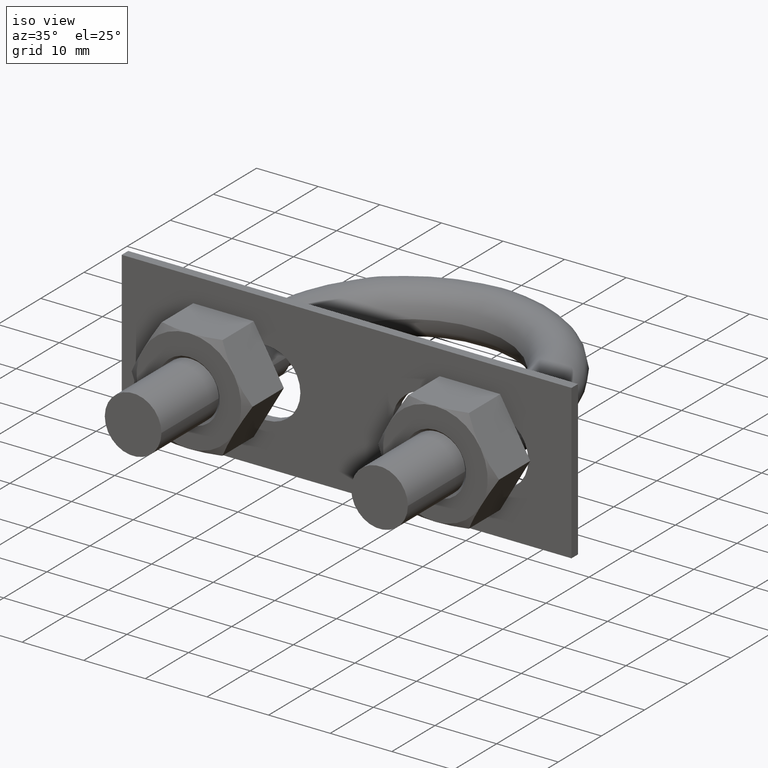
[diagram: clean part render]
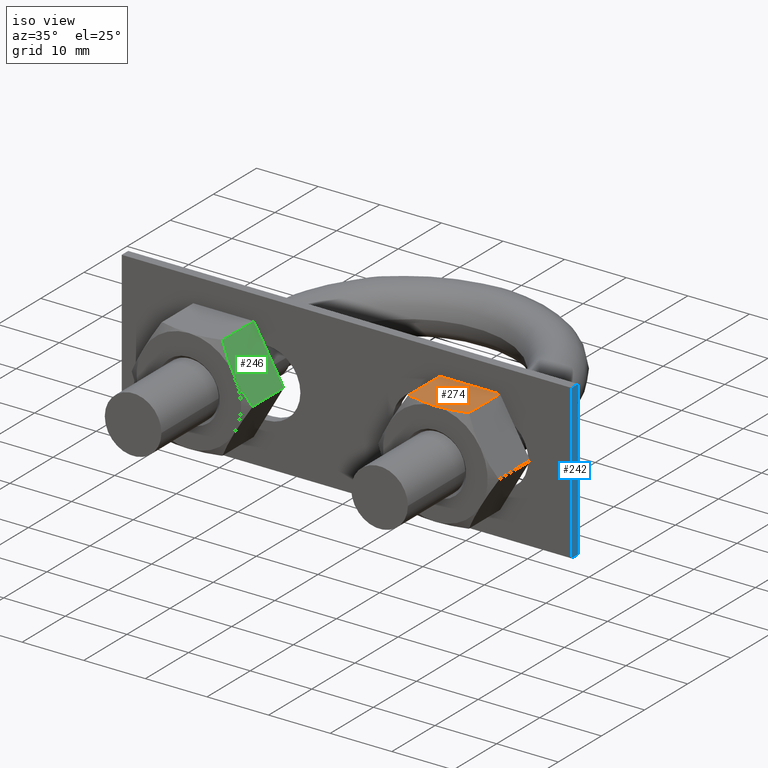
[diagram: same view with three faces highlighted in distinct colors, each labeled with its STEP entity id]
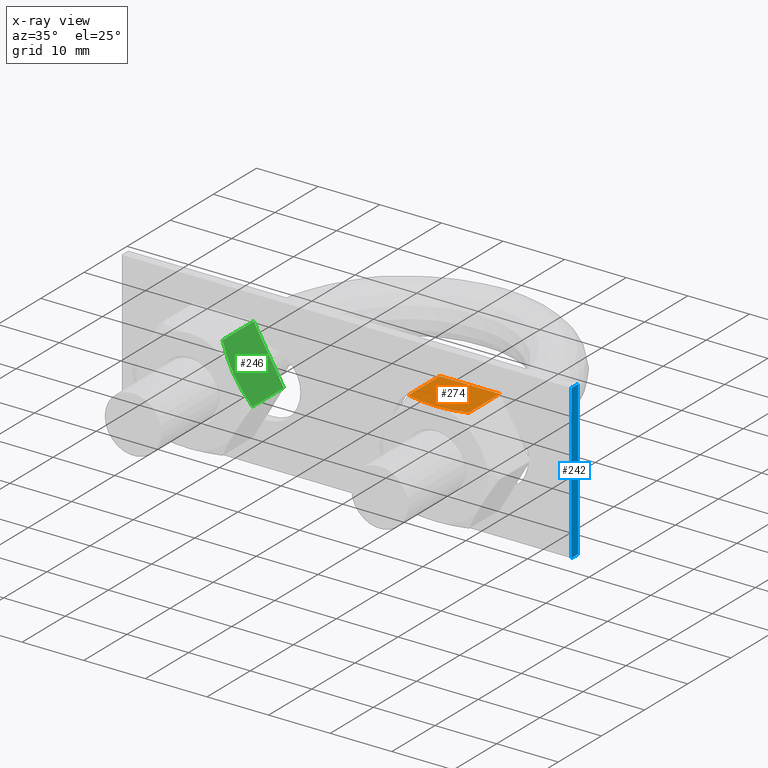
[diagram: x-ray of the same camera — body ghosted, the three highlighted faces saturated]
A machine part, iso view with three faces highlighted in distinct colors.
The next image is the same camera in x-ray (body ghosted, the three faces saturated) — at least one of them is partly hidden behind the body in this view.
Their STEP definitions:

[orange] entity #274 — the highlighted planar face has unit normal (0, -0, -1).
#274 = ADVANCED_FACE( '', ( #417 ), #418, .F. );
#417 = FACE_OUTER_BOUND( '', #737, .T. );
#418 = PLANE( '', #738 );
#737 = EDGE_LOOP( '', ( #1187, #1188, #1189, #1190, #1191 ) );
#738 = AXIS2_PLACEMENT_3D( '', #1192, #1193, #1194 );
#1187 = ORIENTED_EDGE( '', *, *, #1438, .F. );
#1188 = ORIENTED_EDGE( '', *, *, #1405, .F. );
#1189 = ORIENTED_EDGE( '', *, *, #1439, .F. );
#1190 = ORIENTED_EDGE( '', *, *, #1422, .F. );
#1191 = ORIENTED_EDGE( '', *, *, #1433, .F. );
#1192 = CARTESIAN_POINT( '', ( 15.0925227118882, -9.08000000000001, 8.50000000000000 ) );
#1193 = DIRECTION( '', ( 3.74915180455534E-033, -2.29561756065155E-049, -1.00000000000000 ) );
#1194 = DIRECTION( '', ( -6.12303176911189E-017, -1.00000000000000, 0.000000000000000 ) );
#1405 = EDGE_CURVE( '', #1634, #1637, #1638, .T. );
#1422 = EDGE_CURVE( '', #1666, #1668, #1669, .T. );
#1433 = EDGE_CURVE( '', #1687, #1666, #1689, .T. );
#1438 = EDGE_CURVE( '', #1637, #1687, #1696, .T. );
#1439 = EDGE_CURVE( '', #1668, #1634, #1697, .F. );
#1634 = VERTEX_POINT( '', #2034 );
#1637 = VERTEX_POINT( '', #2037 );
#1638 = B_SPLINE_CURVE_WITH_KNOTS( '', 3, ( #2038, #2039, #2040, #2041, #2042, #2043 ), .UNSPECIFIED., .F., .F., ( 4, 2, 4 ), ( 0.0107224888714710, 0.0132032657403443, 0.0156840426092177 ), .UNSPECIFIED. );
#1666 = VERTEX_POINT( '', #2093 );
#1668 = VERTEX_POINT( '', #2095 );
#1669 = LINE( '', #2096, #2097 );
#1687 = VERTEX_POINT( '', #2119 );
#1689 = LINE( '', #2121, #2122 );
#1696 = B_SPLINE_CURVE_WITH_KNOTS( '', 3, ( #2142, #2143, #2144, #2145, #2146, #2147 ), .UNSPECIFIED., .F., .F., ( 4, 2, 4 ), ( 0.0156840426092177, 0.0181633795370703, 0.0206427164649230 ), .UNSPECIFIED. );
#1697 = LINE( '', #2148, #2149 );
#2034 = CARTESIAN_POINT( '', ( 24.8774993593029, -16.3294446500535, 8.50000000000000 ) );
#2037 = CARTESIAN_POINT( '', ( 20.0000000000000, -17.0800000000000, 8.50000000000000 ) );
#2038 = CARTESIAN_POINT( '', ( 24.8774993593029, -16.3294446500535, 8.50000000000000 ) );
#2039 = CARTESIAN_POINT( '', ( 24.0828739329411, -16.5577799069586, 8.50000000000000 ) );
#2040 = CARTESIAN_POINT( '', ( 23.2812026223240, -16.7463452882827, 8.50000000000000 ) );
#2041 = CARTESIAN_POINT( '', ( 21.6573811694461, -17.0078850822183, 8.50000000000000 ) );
#2042 = CARTESIAN_POINT( '', ( 20.8350787536116, -17.0800000000000, 8.50000000000000 ) );
#2043 = CARTESIAN_POINT( '', ( 20.0000000000000, -17.0800000000000, 8.50000000000000 ) );
#2093 = CARTESIAN_POINT( '', ( 15.1225006406971, -9.08000000000001, 8.50000000000000 ) );
#2095 = CARTESIAN_POINT( '', ( 24.8774993593029, -9.08000000000001, 8.50000000000000 ) );
#2096 = CARTESIAN_POINT( '', ( 10.2000000000000, -9.08000000000001, 8.50000000000000 ) );
#2097 = VECTOR( '', #2418, 1000.00000000000 );
#2119 = CARTESIAN_POINT( '', ( 15.1225006406971, -16.3294446500535, 8.50000000000000 ) );
#2121 = CARTESIAN_POINT( '', ( 15.1225006406971, -9.08000000000001, 8.50000000000000 ) );
#2122 = VECTOR( '', #2441, 1000.00000000000 );
#2142 = CARTESIAN_POINT( '', ( 20.0000000000000, -17.0800000000000, 8.50000000000000 ) );
#2143 = CARTESIAN_POINT( '', ( 19.1654059591282, -17.0800000000000, 8.50000000000000 ) );
#2144 = CARTESIAN_POINT( '', ( 18.3409017267985, -17.0076895388738, 8.50000000000000 ) );
#2145 = CARTESIAN_POINT( '', ( 16.7171925770404, -16.7460056252267, 8.50000000000000 ) );
#2146 = CARTESIAN_POINT( '', ( 15.9161421877728, -16.5574971896907, 8.50000000000000 ) );
#2147 = CARTESIAN_POINT( '', ( 15.1225006406971, -16.3294446500535, 8.50000000000000 ) );
#2148 = CARTESIAN_POINT( '', ( 24.8774993593029, -9.08000000000001, 8.50000000000000 ) );
#2149 = VECTOR( '', #2446, 1000.00000000000 );
#2418 = DIRECTION( '', ( 1.00000000000000, -6.12303176911189E-017, 3.74915180455534E-033 ) );
#2441 = DIRECTION( '', ( 6.12303176911189E-017, 1.00000000000000, -4.95179021115217E-066 ) );
#2446 = DIRECTION( '', ( 6.12303176911189E-017, 1.00000000000000, -4.95179021115217E-066 ) );

[blue] entity #242 — the highlighted planar face has unit normal (-1, 0, 0).
#242 = ADVANCED_FACE( '', ( #346 ), #347, .F. );
#346 = FACE_OUTER_BOUND( '', #666, .T. );
#347 = PLANE( '', #667 );
#666 = EDGE_LOOP( '', ( #938, #939, #940, #941 ) );
#667 = AXIS2_PLACEMENT_3D( '', #942, #943, #944 );
#938 = ORIENTED_EDGE( '', *, *, #1342, .T. );
#939 = ORIENTED_EDGE( '', *, *, #1351, .F. );
#940 = ORIENTED_EDGE( '', *, *, #1312, .F. );
#941 = ORIENTED_EDGE( '', *, *, #1350, .T. );
#942 = CARTESIAN_POINT( '', ( 36.5000000000000, -9.08000000000000, -12.5000000000000 ) );
#943 = DIRECTION( '', ( -1.00000000000000, 0.000000000000000, 0.000000000000000 ) );
#944 = DIRECTION( '', ( 0.000000000000000, -6.12303176911189E-017, -1.00000000000000 ) );
#1312 = EDGE_CURVE( '', #1483, #1485, #1486, .T. );
#1342 = EDGE_CURVE( '', #1537, #1535, #1538, .T. );
#1350 = EDGE_CURVE( '', #1483, #1537, #1546, .T. );
#1351 = EDGE_CURVE( '', #1485, #1535, #1547, .T. );
#1483 = VERTEX_POINT( '', #1768 );
#1485 = VERTEX_POINT( '', #1771 );
#1486 = LINE( '', #1772, #1773 );
#1535 = VERTEX_POINT( '', #1838 );
#1537 = VERTEX_POINT( '', #1841 );
#1538 = LINE( '', #1842, #1843 );
#1546 = LINE( '', #1858, #1859 );
#1547 = LINE( '', #1860, #1861 );
#1768 = CARTESIAN_POINT( '', ( 36.5000000000000, -9.08000000000000, -12.5000000000000 ) );
#1771 = CARTESIAN_POINT( '', ( 36.5000000000000, -9.08000000000000, 12.5000000000000 ) );
#1772 = CARTESIAN_POINT( '', ( 36.5000000000000, -9.08000000000000, -12.5000000000000 ) );
#1773 = VECTOR( '', #2234, 1000.00000000000 );
#1838 = CARTESIAN_POINT( '', ( 36.5000000000000, -7.58000000000000, 12.5000000000000 ) );
#1841 = CARTESIAN_POINT( '', ( 36.5000000000000, -7.58000000000000, -12.5000000000000 ) );
#1842 = CARTESIAN_POINT( '', ( 36.5000000000000, -7.58000000000000, -12.5000000000000 ) );
#1843 = VECTOR( '', #2288, 1000.00000000000 );
#1858 = CARTESIAN_POINT( '', ( 36.5000000000000, -9.08000000000000, -12.5000000000000 ) );
#1859 = VECTOR( '', #2296, 1000.00000000000 );
#1860 = CARTESIAN_POINT( '', ( 36.5000000000000, -9.08000000000000, 12.5000000000000 ) );
#1861 = VECTOR( '', #2297, 1000.00000000000 );
#2234 = DIRECTION( '', ( 0.000000000000000, 6.12303176911189E-017, 1.00000000000000 ) );
#2288 = DIRECTION( '', ( 0.000000000000000, 6.12303176911189E-017, 1.00000000000000 ) );
#2296 = DIRECTION( '', ( 0.000000000000000, 1.00000000000000, -6.12303176911189E-017 ) );
#2297 = DIRECTION( '', ( 0.000000000000000, 1.00000000000000, -6.12303176911189E-017 ) );

[green] entity #246 — the highlighted planar face has unit normal (-0.866, 0, -0.5).
#246 = ADVANCED_FACE( '', ( #355 ), #356, .F. );
#355 = FACE_OUTER_BOUND( '', #675, .T. );
#356 = PLANE( '', #676 );
#675 = EDGE_LOOP( '', ( #969, #970, #971, #972, #973 ) );
#676 = AXIS2_PLACEMENT_3D( '', #974, #975, #976 );
#969 = ORIENTED_EDGE( '', *, *, #1355, .F. );
#970 = ORIENTED_EDGE( '', *, *, #1362, .F. );
#971 = ORIENTED_EDGE( '', *, *, #1363, .F. );
#972 = ORIENTED_EDGE( '', *, *, #1364, .F. );
#973 = ORIENTED_EDGE( '', *, *, #1365, .F. );
#974 = CARTESIAN_POINT( '', ( -15.0925227118882, -9.08000000000001, 8.50000000000000 ) );
#975 = DIRECTION( '', ( -0.866025403784439, 5.30270106023007E-017, -0.500000000000000 ) );
#976 = DIRECTION( '', ( -0.500000000000000, 3.06151588455594E-017, 0.866025403784439 ) );
#1355 = EDGE_CURVE( '', #1553, #1549, #1555, .T. );
#1362 = EDGE_CURVE( '', #1567, #1553, #1568, .T. );
#1363 = EDGE_CURVE( '', #1569, #1567, #1570, .F. );
#1364 = EDGE_CURVE( '', #1571, #1569, #1572, .T. );
#1365 = EDGE_CURVE( '', #1549, #1571, #1573, .T. );
#1549 = VERTEX_POINT( '', #1863 );
#1553 = VERTEX_POINT( '', #1872 );
#1555 = B_SPLINE_CURVE_WITH_KNOTS( '', 3, ( #1874, #1875, #1876, #1877, #1878, #1879, #1880, #1881 ), .UNSPECIFIED., .F., .F., ( 4, 2, 2, 4 ), ( 0.00493506423428099, 0.00616384870526321, 0.00739263317624543, 0.00985020211820987 ), .UNSPECIFIED. );
#1567 = VERTEX_POINT( '', #1893 );
#1568 = B_SPLINE_CURVE_WITH_KNOTS( '', 3, ( #1894, #1895, #1896, #1897, #1898, #1899 ), .UNSPECIFIED., .F., .F., ( 4, 2, 4 ), ( 4.83064900408865E-007, 0.00246777364959070, 0.00493506423428099 ), .UNSPECIFIED. );
#1569 = VERTEX_POINT( '', #1900 );
#1570 = LINE( '', #1901, #1902 );
#1571 = VERTEX_POINT( '', #1903 );
#1572 = LINE( '', #1904, #1905 );
#1573 = LINE( '', #1906, #1907 );
#1863 = CARTESIAN_POINT( '', ( -15.0775337474837, -16.3294446500535, 8.47403835209862 ) );
#1872 = CARTESIAN_POINT( '', ( -12.6387840678323, -17.0800000000000, 4.25000000000000 ) );
#1874 = CARTESIAN_POINT( '', ( -12.6387840678323, -17.0800000000000, 4.25000000000000 ) );
#1875 = CARTESIAN_POINT( '', ( -12.8456385394390, -17.0800000000000, 4.60828245459559 ) );
#1876 = CARTESIAN_POINT( '', ( -13.0535275305460, -17.0622887918237, 4.96835674952724 ) );
#1877 = CARTESIAN_POINT( '', ( -13.4647840563434, -16.9936978063788, 5.68067394715264 ) );
#1878 = CARTESIAN_POINT( '', ( -13.6690452347238, -16.9428883495806, 6.03446468612132 ) );
#1879 = CARTESIAN_POINT( '', ( -14.2782186306658, -16.7468505986087, 7.08958395851212 ) );
#1880 = CARTESIAN_POINT( '', ( -14.6795341003769, -16.5581746872645, 7.78468274191512 ) );
#1881 = CARTESIAN_POINT( '', ( -15.0775337474837, -16.3294446500535, 8.47403835209862 ) );
#1893 = CARTESIAN_POINT( '', ( -10.2000343881808, -16.3294446500535, 0.0259616479013807 ) );
#1894 = CARTESIAN_POINT( '', ( -10.2000343881808, -16.3294446500535, 0.0259616479013799 ) );
#1895 = CARTESIAN_POINT( '', ( -10.5990867524617, -16.5587796828723, 0.717140617716314 ) );
#1896 = CARTESIAN_POINT( '', ( -11.0010212207036, -16.7475474634560, 1.41331153802454 ) );
#1897 = CARTESIAN_POINT( '', ( -11.8131667591043, -17.0085851459414, 2.81998887367487 ) );
#1898 = CARTESIAN_POINT( '', ( -12.2234385762114, -17.0800000000000, 3.53060050581790 ) );
#1899 = CARTESIAN_POINT( '', ( -12.6387840678323, -17.0800000000000, 4.25000000000000 ) );
#1900 = CARTESIAN_POINT( '', ( -10.2000343881808, -9.08000000000001, 0.0259616479013815 ) );
#1901 = CARTESIAN_POINT( '', ( -10.2000343881808, -9.08000000000001, 0.0259616479013807 ) );
#1902 = VECTOR( '', #2322, 1000.00000000000 );
#1903 = CARTESIAN_POINT( '', ( -15.0775337474837, -9.08000000000001, 8.47403835209862 ) );
#1904 = CARTESIAN_POINT( '', ( -15.0887840678323, -9.08000000000001, 8.49352447854375 ) );
#1905 = VECTOR( '', #2323, 1000.00000000000 );
#1906 = CARTESIAN_POINT( '', ( -15.0775337474837, -9.08000000000001, 8.47403835209862 ) );
#1907 = VECTOR( '', #2324, 1000.00000000000 );
#2322 = DIRECTION( '', ( 6.12303176911189E-017, 1.00000000000000, -4.95179021115217E-066 ) );
#2323 = DIRECTION( '', ( 0.500000000000000, -3.06151588455594E-017, -0.866025403784439 ) );
#2324 = DIRECTION( '', ( 6.12303176911189E-017, 1.00000000000000, -4.95179021115217E-066 ) );